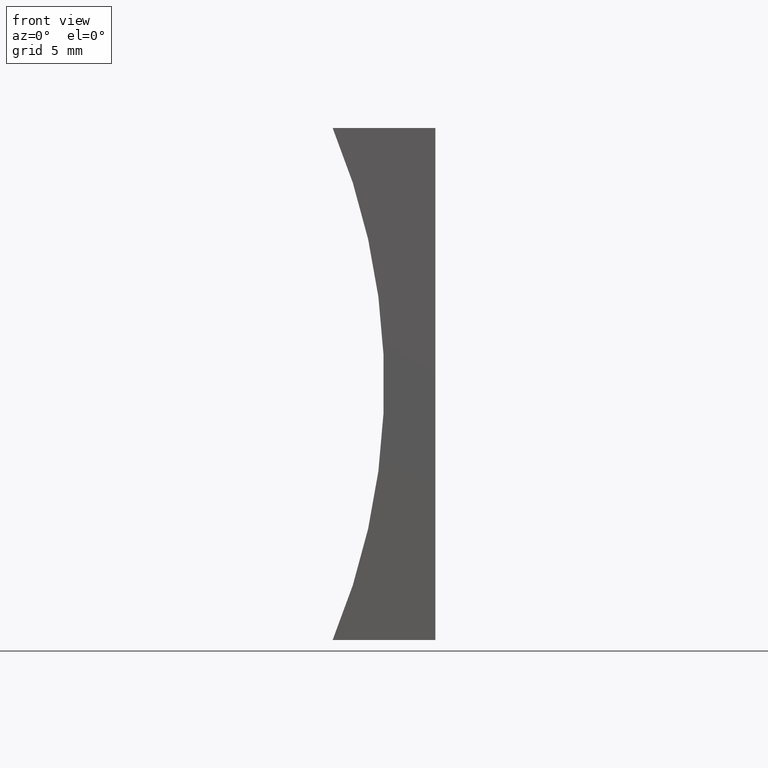
[diagram: clean part render]
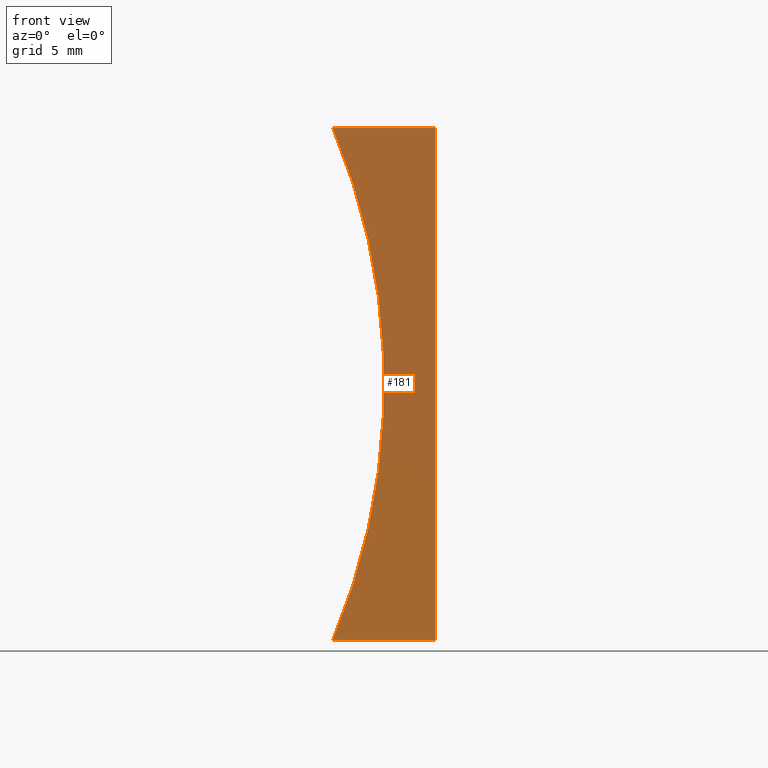
[diagram: same view with one face highlighted and labeled with its STEP entity id]
A machine part, front view. The second image highlights one B-rep face of the part: STEP entity #181.
In plain terms, the highlighted planar face has unit normal (0, 1, 0).
Its self-contained STEP definition (entity closure, byte-faithful):
#4 = CARTESIAN_POINT ( 'NONE',  ( -27.85000000000000100, 0.0000000000000000000, 10.00000000000000200 ) ) ;
#6 = VERTEX_POINT ( 'NONE', #92 ) ;
#7 = DIRECTION ( 'NONE',  ( 1.000000000000000000, -0.0000000000000000000, 8.646420205378973500E-016 ) ) ;
#11 = CARTESIAN_POINT ( 'NONE',  ( 0.0000000000000000000, 0.0000000000000000000, 0.0000000000000000000 ) ) ;
#13 = EDGE_CURVE ( 'NONE', #70, #88, #45, .T. ) ;
#14 = VECTOR ( 'NONE', #194, 1000.000000000000000 ) ;
#15 = ORIENTED_EDGE ( 'NONE', *, *, #30, .F. ) ;
#19 = ORIENTED_EDGE ( 'NONE', *, *, #13, .F. ) ;
#24 = PLANE ( 'NONE',  #63 ) ;
#30 = EDGE_CURVE ( 'NONE', #107, #70, #124, .T. ) ;
#31 = CARTESIAN_POINT ( 'NONE',  ( -4.012581935117213800, 0.0000000000000000000, 5.204170427930421300E-015 ) ) ;
#32 = ORIENTED_EDGE ( 'NONE', *, *, #137, .F. ) ;
#33 = LINE ( 'NONE', #147, #172 ) ;
#45 = LINE ( 'NONE', #78, #14 ) ;
#54 = DIRECTION ( 'NONE',  ( 0.0000000000000000000, 1.000000000000000000, 0.0000000000000000000 ) ) ;
#58 = FACE_OUTER_BOUND ( 'NONE', #174, .T. ) ;
#63 = AXIS2_PLACEMENT_3D ( 'NONE', #199, #54, #120 ) ;
#66 = CARTESIAN_POINT ( 'NONE',  ( 1.224646799147353300E-015, 0.0000000000000000000, 20.00000000000000000 ) ) ;
#68 = DIRECTION ( 'NONE',  ( -6.123233995736766000E-017, -0.0000000000000000000, -1.000000000000000000 ) ) ;
#70 = VERTEX_POINT ( 'NONE', #75 ) ;
#75 = CARTESIAN_POINT ( 'NONE',  ( 0.0000000000000000000, 0.0000000000000000000, 0.0000000000000000000 ) ) ;
#78 = CARTESIAN_POINT ( 'NONE',  ( 0.0000000000000000000, 0.0000000000000000000, 0.0000000000000000000 ) ) ;
#88 = VERTEX_POINT ( 'NONE', #31 ) ;
#92 = CARTESIAN_POINT ( 'NONE',  ( -4.012581935117213000, 0.0000000000000000000, 19.99999999999999600 ) ) ;
#106 = DIRECTION ( 'NONE',  ( 0.0000000000000000000, 0.0000000000000000000, 1.000000000000000000 ) ) ;
#107 = VERTEX_POINT ( 'NONE', #66 ) ;
#115 = EDGE_CURVE ( 'NONE', #6, #107, #33, .T. ) ;
#117 = VECTOR ( 'NONE', #68, 1000.000000000000000 ) ;
#120 = DIRECTION ( 'NONE',  ( 0.0000000000000000000, -0.0000000000000000000, 1.000000000000000000 ) ) ;
#124 = LINE ( 'NONE', #11, #117 ) ;
#127 = AXIS2_PLACEMENT_3D ( 'NONE', #4, #180, #106 ) ;
#137 = EDGE_CURVE ( 'NONE', #88, #6, #203, .T. ) ;
#147 = CARTESIAN_POINT ( 'NONE',  ( 1.224646799147353300E-015, 0.0000000000000000000, 20.00000000000000000 ) ) ;
#151 = ORIENTED_EDGE ( 'NONE', *, *, #115, .F. ) ;
#172 = VECTOR ( 'NONE', #7, 1000.000000000000000 ) ;
#174 = EDGE_LOOP ( 'NONE', ( #19, #15, #151, #32 ) ) ;
#180 = DIRECTION ( 'NONE',  ( -0.0000000000000000000, -1.000000000000000000, -0.0000000000000000000 ) ) ;
#181 = ADVANCED_FACE ( 'NONE', ( #58 ), #24, .F. ) ;
#194 = DIRECTION ( 'NONE',  ( -1.000000000000000000, 0.0000000000000000000, 8.646420205378970500E-016 ) ) ;
#199 = CARTESIAN_POINT ( 'NONE',  ( -27.85000000000000100, 0.0000000000000000000, 10.00000000000000200 ) ) ;
#203 = CIRCLE ( 'NONE', #127, 25.85000000000000500 ) ;